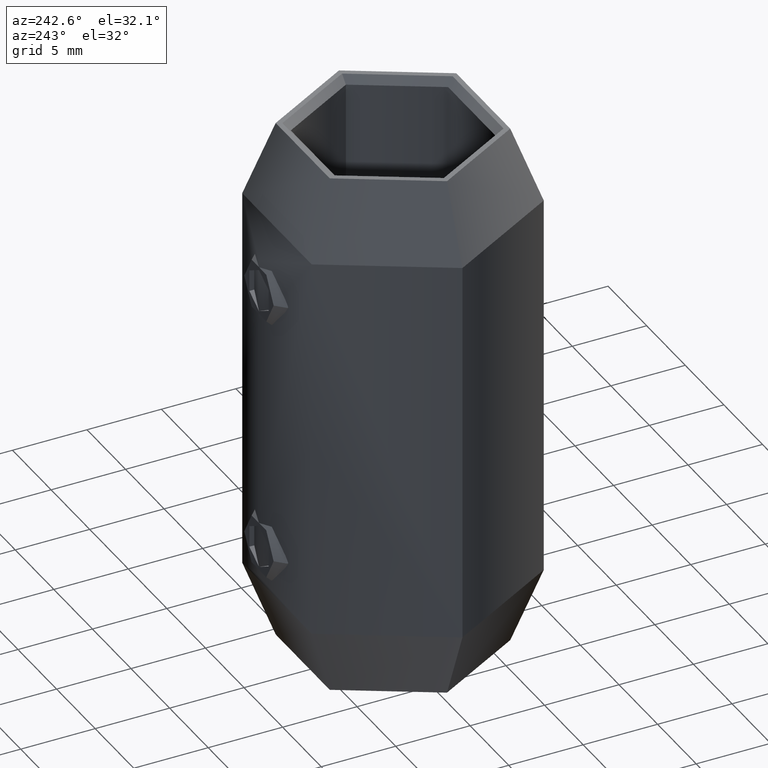
[diagram: clean part render]
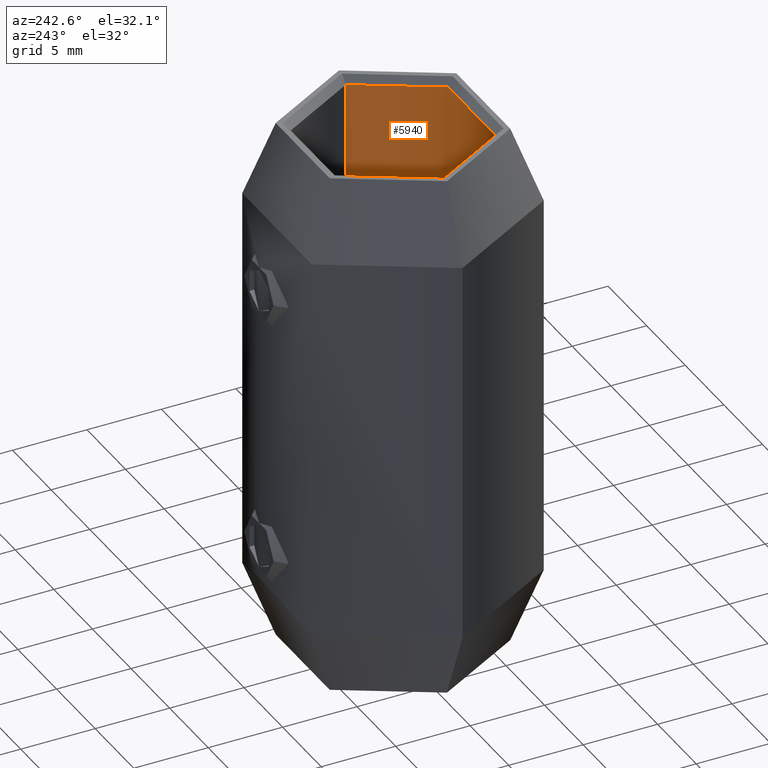
[diagram: same view with one face highlighted and labeled with its STEP entity id]
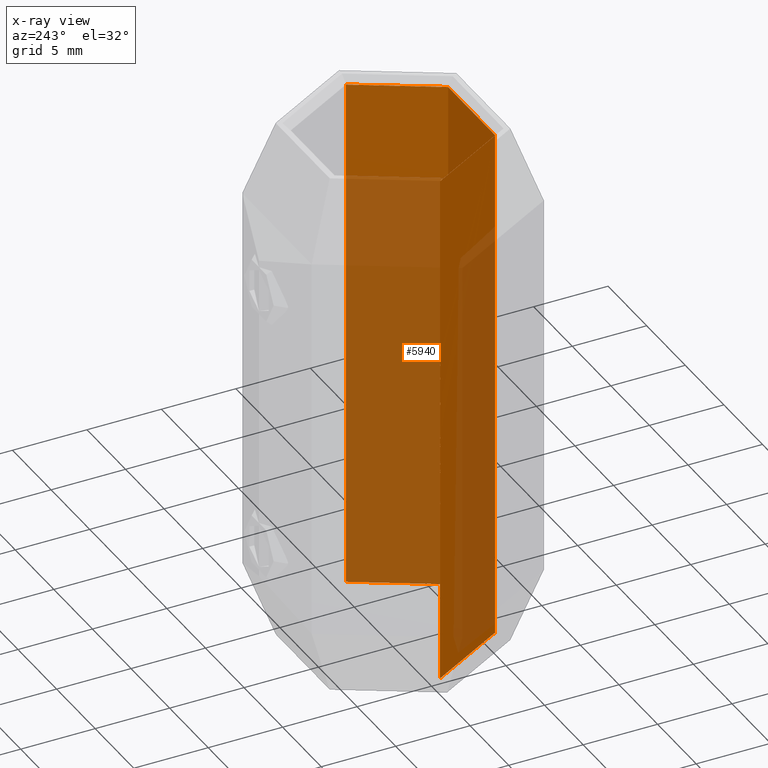
[diagram: x-ray of the same camera — body ghosted, the highlighted face saturated]
A machine part, auxiliary view. The second image highlights one B-rep face of the part: STEP entity #5940.
The next image is the same camera in x-ray: the body ghosted, the highlighted face saturated — about 70% of this face is hidden behind the body in this view.
In plain terms, the highlighted cylindrical surface (partial cylindrical patch) has radius 6.1 mm, axis along (0, 0, 1).
Its self-contained STEP definition (entity closure, byte-faithful):
#9 = CARTESIAN_POINT ( 'NONE',  ( -6.099999999999999645, -7.128602814312589957E-15, -3.035739101174560250 ) ) ;
#25 = ORIENTED_EDGE ( 'NONE', *, *, #14129, .F. ) ;
#60 = EDGE_CURVE ( 'NONE', #2687, #11102, #1113, .T. ) ;
#79 = EDGE_CURVE ( 'NONE', #8986, #861, #7922, .T. ) ;
#134 = VECTOR ( 'NONE', #4124, 1000.000000000000000 ) ;
#170 = LINE ( 'NONE', #12614, #13393 ) ;
#274 = CARTESIAN_POINT ( 'NONE',  ( -6.099999999999999645, 0.000000000000000000, 5.276402243589747521 ) ) ;
#322 = CARTESIAN_POINT ( 'NONE',  ( -6.099999999999994316, -0.01487762929069010552, -2.247464239202386693 ) ) ;
#338 = DIRECTION ( 'NONE',  ( -0.000000000000000000, -0.000000000000000000, 1.000000000000000000 ) ) ;
#347 = LINE ( 'NONE', #7769, #3084 ) ;
#460 = EDGE_CURVE ( 'NONE', #14965, #1084, #15880, .T. ) ;
#488 = DIRECTION ( 'NONE',  ( -0.000000000000000000, -0.000000000000000000, 1.000000000000000000 ) ) ;
#511 = EDGE_CURVE ( 'NONE', #7073, #12593, #9694, .T. ) ;
#539 = CARTESIAN_POINT ( 'NONE',  ( -6.099999999999999645, -1.761453718209784677E-13, 1.756918154046631875 ) ) ;
#588 = CARTESIAN_POINT ( 'NONE',  ( -6.099991511738652505, -0.01017628205128205156, 4.567401592548075762 ) ) ;
#630 = CARTESIAN_POINT ( 'NONE',  ( -6.099999999999999645, 0.000000000000000000, 3.312379807692309441 ) ) ;
#745 = ORIENTED_EDGE ( 'NONE', *, *, #3010, .F. ) ;
#781 = CARTESIAN_POINT ( 'NONE',  ( -6.099999999999999645, 7.470345474798854293E-16, 18.00000000000000000 ) ) ;
#808 = VERTEX_POINT ( 'NONE', #4639 ) ;
#826 = AXIS2_PLACEMENT_3D ( 'NONE', #7786, #15023, #5125 ) ;
#839 = CARTESIAN_POINT ( 'NONE',  ( -6.099999999999999645, 7.470345474798854293E-16, 18.00000000000000000 ) ) ;
#861 = VERTEX_POINT ( 'NONE', #5879 ) ;
#862 = DIRECTION ( 'NONE',  ( -0.000000000000000000, -0.000000000000000000, 1.000000000000000000 ) ) ;
#900 = LINE ( 'NONE', #10864, #11029 ) ;
#929 = DIRECTION ( 'NONE',  ( -0.000000000000000000, -0.000000000000000000, 1.000000000000000000 ) ) ;
#947 = DIRECTION ( 'NONE',  ( -0.000000000000000000, -0.000000000000000000, 1.000000000000000000 ) ) ;
#1040 = ORIENTED_EDGE ( 'NONE', *, *, #511, .F. ) ;
#1076 = VERTEX_POINT ( 'NONE', #11464 ) ;
#1084 = VERTEX_POINT ( 'NONE', #9091 ) ;
#1113 = CIRCLE ( 'NONE', #2600, 6.099999999999999645 ) ;
#1123 = ORIENTED_EDGE ( 'NONE', *, *, #5892, .T. ) ;
#1125 = EDGE_CURVE ( 'NONE', #4654, #10442, #6743, .T. ) ;
#1189 = DIRECTION ( 'NONE',  ( -0.000000000000000000, -0.000000000000000000, 1.000000000000000000 ) ) ;
#1203 = CARTESIAN_POINT ( 'NONE',  ( -6.099999999999996980, -0.006827771879876605443, 1.894279216789888309 ) ) ;
#1232 = ORIENTED_EDGE ( 'NONE', *, *, #14001, .F. ) ;
#1245 = CARTESIAN_POINT ( 'NONE',  ( -6.099999999999999645, 0.000000000000000000, 3.383613782051283714 ) ) ;
#1288 = CARTESIAN_POINT ( 'NONE',  ( -6.099999999999994316, 7.216720710606636917E-16, -0.3807421835509421926 ) ) ;
#1335 = CARTESIAN_POINT ( 'NONE',  ( -6.099968332915547187, -0.01966740638621949228, -2.889026597254146456 ) ) ;
#1397 = CARTESIAN_POINT ( 'NONE',  ( -6.099967924615060433, -0.01978978010940245572, -1.071609795172099755 ) ) ;
#1420 = VERTEX_POINT ( 'NONE', #8383 ) ;
#1440 = CARTESIAN_POINT ( 'NONE',  ( -6.100000000000002309, -0.006930887742653853503, 3.564685716166610341 ) ) ;
#1455 = VERTEX_POINT ( 'NONE', #3369 ) ;
#1463 = CARTESIAN_POINT ( 'NONE',  ( -6.099999999999999645, 0.000000000000000000, 18.00000000000000000 ) ) ;
#1493 = LINE ( 'NONE', #10277, #13558 ) ;
#1521 = EDGE_CURVE ( 'NONE', #8479, #1084, #8075, .T. ) ;
#1534 = ORIENTED_EDGE ( 'NONE', *, *, #11374, .F. ) ;
#1538 = CARTESIAN_POINT ( 'NONE',  ( 6.099999999999999645, 0.000000000000000000, 18.00000000000000000 ) ) ;
#1549 = DIRECTION ( 'NONE',  ( -0.000000000000000000, -0.000000000000000000, 1.000000000000000000 ) ) ;
#1609 = EDGE_CURVE ( 'NONE', #808, #6469, #900, .T. ) ;
#1651 = CARTESIAN_POINT ( 'NONE',  ( -6.099991511738652505, -0.01017628205128205156, 3.620530348557694289 ) ) ;
#1750 = VECTOR ( 'NONE', #11284, 1000.000000000000000 ) ;
#1783 = VERTEX_POINT ( 'NONE', #11226 ) ;
#1923 = LINE ( 'NONE', #1538, #2508 ) ;
#1958 = VERTEX_POINT ( 'NONE', #9172 ) ;
#1981 = VERTEX_POINT ( 'NONE', #7839 ) ;
#1986 = VERTEX_POINT ( 'NONE', #8018 ) ;
#1987 = ORIENTED_EDGE ( 'NONE', *, *, #10204, .T. ) ;
#2042 = DIRECTION ( 'NONE',  ( 1.000000000000000000, 0.000000000000000000, 0.000000000000000000 ) ) ;
#2095 = EDGE_CURVE ( 'NONE', #15387, #10442, #7956, .T. ) ;
#2123 = LINE ( 'NONE', #13334, #5649 ) ;
#2226 = LINE ( 'NONE', #3975, #7691 ) ;
#2252 = CARTESIAN_POINT ( 'NONE',  ( -6.099966046883739779, -0.02035256410256410312, -5.134729316907040264 ) ) ;
#2259 = EDGE_CURVE ( 'NONE', #2440, #4425, #5563, .T. ) ;
#2271 = VECTOR ( 'NONE', #4439, 1000.000000000000000 ) ;
#2331 = DIRECTION ( 'NONE',  ( -0.000000000000000000, -0.000000000000000000, 1.000000000000000000 ) ) ;
#2357 = CARTESIAN_POINT ( 'NONE',  ( -6.099991511738652505, -0.01017628205128205156, 1.839680989583336368 ) ) ;
#2369 = VERTEX_POINT ( 'NONE', #15508 ) ;
#2440 = VERTEX_POINT ( 'NONE', #1651 ) ;
#2481 = CARTESIAN_POINT ( 'NONE',  ( -6.099999999999999645, -0.01393049002650652464, -1.038606798505022466 ) ) ;
#2504 = CARTESIAN_POINT ( 'NONE',  ( -6.099991511738652505, -0.01017628205128205156, 1.839680989583336368 ) ) ;
#2508 = VECTOR ( 'NONE', #2740, 1000.000000000000000 ) ;
#2516 = AXIS2_PLACEMENT_3D ( 'NONE', #10886, #8550, #2042 ) ;
#2538 = CARTESIAN_POINT ( 'NONE',  ( -6.099999999999999645, 0.000000000000000000, -1.826642628205119800 ) ) ;
#2543 = ORIENTED_EDGE ( 'NONE', *, *, #2259, .F. ) ;
#2600 = AXIS2_PLACEMENT_3D ( 'NONE', #10874, #8434, #8323 ) ;
#2623 = CARTESIAN_POINT ( 'NONE',  ( -6.099999999999999645, 0.000000000000000000, 0.6258413461538516742 ) ) ;
#2687 = VERTEX_POINT ( 'NONE', #15841 ) ;
#2713 = LINE ( 'NONE', #3508, #15134 ) ;
#2721 = DIRECTION ( 'NONE',  ( 0.000000000000000000, 0.000000000000000000, -1.000000000000000000 ) ) ;
#2722 = ORIENTED_EDGE ( 'NONE', *, *, #4158, .T. ) ;
#2740 = DIRECTION ( 'NONE',  ( -0.000000000000000000, -0.000000000000000000, 1.000000000000000000 ) ) ;
#2750 = B_SPLINE_CURVE_WITH_KNOTS ( 'NONE', 3,
 ( #7857, #14254, #4214, #13008 ),
 .UNSPECIFIED., .F., .F.,
 ( 4, 4 ),
 ( 0.0003919476366704351426, 0.0004724429858818090795 ),
 .UNSPECIFIED. ) ;
#2797 = EDGE_CURVE ( 'NONE', #14965, #1783, #12708, .T. ) ;
#2844 = EDGE_CURVE ( 'NONE', #7073, #8640, #6922, .T. ) ;
#2847 = VERTEX_POINT ( 'NONE', #9 ) ;
#2868 = DIRECTION ( 'NONE',  ( -0.000000000000000000, -0.000000000000000000, 1.000000000000000000 ) ) ;
#2895 = LINE ( 'NONE', #15574, #11468 ) ;
#2902 = VERTEX_POINT ( 'NONE', #15006 ) ;
#2978 = CARTESIAN_POINT ( 'NONE',  ( -6.099999999999999645, 7.470345474798854293E-16, 18.00000000000000000 ) ) ;
#3010 = EDGE_CURVE ( 'NONE', #9146, #6469, #3180, .T. ) ;
#3084 = VECTOR ( 'NONE', #1549, 1000.000000000000000 ) ;
#3148 = EDGE_CURVE ( 'NONE', #4904, #15879, #4176, .T. ) ;
#3160 = CARTESIAN_POINT ( 'NONE',  ( -6.099991511738652505, -0.01017628205128205156, 1.839680989583336368 ) ) ;
#3180 = B_SPLINE_CURVE_WITH_KNOTS ( 'NONE', 3,
 ( #588, #9312, #11614, #12848 ),
 .UNSPECIFIED., .F., .F.,
 ( 4, 4 ),
 ( 0.000000000000000000, 8.654155194091915409E-05 ),
 .UNSPECIFIED. ) ;
#3228 = LINE ( 'NONE', #12699, #6127 ) ;
#3230 = VECTOR ( 'NONE', #15576, 1000.000000000000000 ) ;
#3274 = DIRECTION ( 'NONE',  ( 0.000000000000000000, 0.000000000000000000, -1.000000000000000000 ) ) ;
#3296 = VERTEX_POINT ( 'NONE', #1245 ) ;
#3312 = VERTEX_POINT ( 'NONE', #7299 ) ;
#3323 = CARTESIAN_POINT ( 'NONE',  ( -6.099966046883739779, -0.02035256410256410312, -2.329255558894223643 ) ) ;
#3329 = LINE ( 'NONE', #781, #7982 ) ;
#3369 = CARTESIAN_POINT ( 'NONE',  ( -6.099999999999999645, 0.000000000000000000, 3.078325320512821595 ) ) ;
#3414 = VERTEX_POINT ( 'NONE', #8836 ) ;
#3459 = DIRECTION ( 'NONE',  ( -0.000000000000000000, -0.000000000000000000, 1.000000000000000000 ) ) ;
#3478 = CARTESIAN_POINT ( 'NONE',  ( -6.099999999999999645, 7.470345474798854293E-16, 18.00000000000000000 ) ) ;
#3508 = CARTESIAN_POINT ( 'NONE',  ( -6.099999999999999645, 0.000000000000000000, 18.00000000000000000 ) ) ;
#3520 = CARTESIAN_POINT ( 'NONE',  ( -6.099999999999999645, 7.470345474798854293E-16, 18.00000000000000000 ) ) ;
#3540 = LINE ( 'NONE', #3520, #8225 ) ;
#3604 = EDGE_CURVE ( 'NONE', #3296, #4425, #3228, .T. ) ;
#3689 = ORIENTED_EDGE ( 'NONE', *, *, #13789, .T. ) ;
#3696 = VERTEX_POINT ( 'NONE', #274 ) ;
#3714 = ORIENTED_EDGE ( 'NONE', *, *, #4723, .T. ) ;
#3762 = CARTESIAN_POINT ( 'NONE',  ( -6.099999999999999645, 3.208137287725662534E-17, 4.652155334602600334 ) ) ;
#3791 = CARTESIAN_POINT ( 'NONE',  ( -6.099966046883739779, -0.02035256410256410312, -0.4813063401442249645 ) ) ;
#3805 = VECTOR ( 'NONE', #9394, 1000.000000000000000 ) ;
#3832 = ORIENTED_EDGE ( 'NONE', *, *, #6950, .T. ) ;
#3837 = ORIENTED_EDGE ( 'NONE', *, *, #3604, .T. ) ;
#3887 = LINE ( 'NONE', #14268, #13013 ) ;
#3964 = EDGE_CURVE ( 'NONE', #4904, #861, #14489, .T. ) ;
#3975 = CARTESIAN_POINT ( 'NONE',  ( -6.099999999999999645, 7.470345474798854293E-16, 18.00000000000000000 ) ) ;
#4045 = EDGE_LOOP ( 'NONE', ( #12064, #2722, #7642, #11728, #3832, #7162, #5515, #10532, #4480, #1534, #6720, #13050, #12078, #5167, #14786, #7605, #5113, #4951, #13963, #6059, #1232, #8354, #8954, #9715, #3714, #8008, #6354, #13442, #13165, #8038, #1987, #1040, #6240, #15001, #12792, #9372, #9948, #16026, #14838, #6247, #10304, #14922, #9974, #3837, #2543, #11030, #1123, #5208, #11447, #745, #4279, #3689, #6156, #4718, #15027, #25 ) ) ;
#4124 = DIRECTION ( 'NONE',  ( -0.000000000000000000, -0.000000000000000000, 1.000000000000000000 ) ) ;
#4141 = CARTESIAN_POINT ( 'NONE',  ( -6.099999999999999645, 7.470345474798854293E-16, 18.00000000000000000 ) ) ;
#4158 = EDGE_CURVE ( 'NONE', #1986, #12969, #12901, .T. ) ;
#4176 = LINE ( 'NONE', #8103, #8488 ) ;
#4192 = VECTOR ( 'NONE', #2331, 1000.000000000000000 ) ;
#4214 = CARTESIAN_POINT ( 'NONE',  ( -6.099992744494645791, -0.009437328368480721666, 3.647746412283787265 ) ) ;
#4225 = VECTOR ( 'NONE', #5692, 1000.000000000000000 ) ;
#4279 = ORIENTED_EDGE ( 'NONE', *, *, #10401, .F. ) ;
#4414 = CARTESIAN_POINT ( 'NONE',  ( -6.099999999999999645, 0.000000000000000000, 18.00000000000000000 ) ) ;
#4425 = VERTEX_POINT ( 'NONE', #5246 ) ;
#4439 = DIRECTION ( 'NONE',  ( -0.000000000000000000, -0.000000000000000000, 1.000000000000000000 ) ) ;
#4480 = ORIENTED_EDGE ( 'NONE', *, *, #11540, .T. ) ;
#4519 = LINE ( 'NONE', #7580, #5860 ) ;
#4600 = VECTOR ( 'NONE', #4903, 1000.000000000000000 ) ;
#4639 = CARTESIAN_POINT ( 'NONE',  ( -6.099999999999999645, 0.000000000000000000, 4.136658653846157385 ) ) ;
#4654 = VERTEX_POINT ( 'NONE', #2538 ) ;
#4718 = ORIENTED_EDGE ( 'NONE', *, *, #6136, .T. ) ;
#4723 = EDGE_CURVE ( 'NONE', #8006, #15785, #2226, .T. ) ;
#4739 = DIRECTION ( 'NONE',  ( 0.000000000000000000, 0.000000000000000000, -1.000000000000000000 ) ) ;
#4888 = B_SPLINE_CURVE_WITH_KNOTS ( 'NONE', 3,
 ( #11364, #2481, #1397, #11207 ),
 .UNSPECIFIED., .F., .F.,
 ( 4, 4 ),
 ( 0.0004565077820342771102, 0.0005551697821217590643 ),
 .UNSPECIFIED. ) ;
#4903 = DIRECTION ( 'NONE',  ( -0.000000000000000000, -0.000000000000000000, 1.000000000000000000 ) ) ;
#4904 = VERTEX_POINT ( 'NONE', #10618 ) ;
#4912 = VECTOR ( 'NONE', #5502, 1000.000000000000000 ) ;
#4951 = ORIENTED_EDGE ( 'NONE', *, *, #2095, .F. ) ;
#4995 = EDGE_CURVE ( 'NONE', #9905, #15785, #12716, .T. ) ;
#5000 = CARTESIAN_POINT ( 'NONE',  ( -6.099966046883739779, -0.02035256410256410312, -2.923614032451915978 ) ) ;
#5066 = CARTESIAN_POINT ( 'NONE',  ( -6.099968332915539193, -0.01966740638621956166, -0.4467189049464558859 ) ) ;
#5073 = CARTESIAN_POINT ( 'NONE',  ( -6.099999999999999645, 7.470345474798854293E-16, 18.00000000000000000 ) ) ;
#5082 = EDGE_CURVE ( 'NONE', #1076, #6824, #8678, .T. ) ;
#5113 = ORIENTED_EDGE ( 'NONE', *, *, #1125, .T. ) ;
#5125 = DIRECTION ( 'NONE',  ( 1.000000000000000000, 0.000000000000000000, 0.000000000000000000 ) ) ;
#5166 = CARTESIAN_POINT ( 'NONE',  ( -6.099966046883739779, -0.02035256410256410312, -2.923614032451915978 ) ) ;
#5167 = ORIENTED_EDGE ( 'NONE', *, *, #8755, .F. ) ;
#5174 = EDGE_CURVE ( 'NONE', #1420, #5529, #9553, .T. ) ;
#5189 = CARTESIAN_POINT ( 'NONE',  ( -6.099999999999999645, 0.000000000000000000, 1.602764423076927347 ) ) ;
#5208 = ORIENTED_EDGE ( 'NONE', *, *, #8317, .F. ) ;
#5246 = CARTESIAN_POINT ( 'NONE',  ( -6.099999999999996980, -1.761176314919558642E-13, 3.537767513020990240 ) ) ;
#5248 = CARTESIAN_POINT ( 'NONE',  ( -6.099999999999999645, 7.470345474798854293E-16, 18.00000000000000000 ) ) ;
#5283 = CARTESIAN_POINT ( 'NONE',  ( -6.099999999999999645, 0.000000000000000000, 0.9311298076923115730 ) ) ;
#5331 = CARTESIAN_POINT ( 'NONE',  ( -6.099999999999999645, 0.000000000000000000, -4.706530448717937354 ) ) ;
#5407 = CARTESIAN_POINT ( 'NONE',  ( -6.099999999999999645, 0.000000000000000000, 0.6970753205128230601 ) ) ;
#5455 = VERTEX_POINT ( 'NONE', #8859 ) ;
#5480 = CARTESIAN_POINT ( 'NONE',  ( -6.099999999999999645, 0.000000000000000000, 1.297475961538466338 ) ) ;
#5494 = CARTESIAN_POINT ( 'NONE',  ( -6.099999999999999645, -4.680915824764077249E-16, -2.209898723622862438 ) ) ;
#5502 = DIRECTION ( 'NONE',  ( -0.000000000000000000, -0.000000000000000000, 1.000000000000000000 ) ) ;
#5515 = ORIENTED_EDGE ( 'NONE', *, *, #6987, .T. ) ;
#5529 = VERTEX_POINT ( 'NONE', #10542 ) ;
#5563 = B_SPLINE_CURVE_WITH_KNOTS ( 'NONE', 3,
 ( #15118, #13936, #1440, #15272 ),
 .UNSPECIFIED., .F., .F.,
 ( 4, 4 ),
 ( 0.000000000000000000, 8.345817654298412925E-05 ),
 .UNSPECIFIED. ) ;
#5649 = VECTOR ( 'NONE', #13495, 1000.000000000000000 ) ;
#5662 = VECTOR ( 'NONE', #3274, 1000.000000000000000 ) ;
#5692 = DIRECTION ( 'NONE',  ( 0.000000000000000000, 0.000000000000000000, -1.000000000000000000 ) ) ;
#5723 = DIRECTION ( 'NONE',  ( 0.000000000000000000, 0.000000000000000000, -1.000000000000000000 ) ) ;
#5738 = DIRECTION ( 'NONE',  ( -0.000000000000000000, -0.000000000000000000, 1.000000000000000000 ) ) ;
#5774 = VERTEX_POINT ( 'NONE', #8689 ) ;
#5821 = CARTESIAN_POINT ( 'NONE',  ( -6.099999999999999645, -4.680915824764077249E-16, -2.209898723622862438 ) ) ;
#5860 = VECTOR ( 'NONE', #11231, 1000.000000000000000 ) ;
#5879 = CARTESIAN_POINT ( 'NONE',  ( -6.099999999999999645, 0.000000000000000000, 2.681450320512821506 ) ) ;
#5880 = VERTEX_POINT ( 'NONE', #12286 ) ;
#5892 = EDGE_CURVE ( 'NONE', #13174, #10090, #8804, .T. ) ;
#5902 = CARTESIAN_POINT ( 'NONE',  ( -6.099999999999999645, 0.000000000000000000, 0.1882612179487234139 ) ) ;
#5940 = ADVANCED_FACE ( 'NONE', ( #8620 ), #11699, .F. ) ;
#5991 = VECTOR ( 'NONE', #11999, 1000.000000000000000 ) ;
#6042 = CIRCLE ( 'NONE', #2516, 6.099999999999999645 ) ;
#6059 = ORIENTED_EDGE ( 'NONE', *, *, #10464, .T. ) ;
#6082 = CARTESIAN_POINT ( 'NONE',  ( -6.099999999999994316, -0.01415666475628486048, -0.5576926582445450586 ) ) ;
#6089 = CARTESIAN_POINT ( 'NONE',  ( -6.100000000000002309, -0.01402082616364579322, -2.854363495023751973 ) ) ;
#6121 = CARTESIAN_POINT ( 'NONE',  ( -6.100000000000014744, -0.01459490169198332868, -2.409896994860161179 ) ) ;
#6127 = VECTOR ( 'NONE', #10339, 1000.000000000000000 ) ;
#6136 = EDGE_CURVE ( 'NONE', #2369, #2687, #8241, .T. ) ;
#6156 = ORIENTED_EDGE ( 'NONE', *, *, #9414, .F. ) ;
#6193 = LINE ( 'NONE', #2978, #8175 ) ;
#6240 = ORIENTED_EDGE ( 'NONE', *, *, #2844, .T. ) ;
#6247 = ORIENTED_EDGE ( 'NONE', *, *, #15232, .T. ) ;
#6297 = CARTESIAN_POINT ( 'NONE',  ( -6.099992623472611619, -0.009509872871123155325, 4.595948811195976091 ) ) ;
#6354 = ORIENTED_EDGE ( 'NONE', *, *, #12383, .T. ) ;
#6461 = CARTESIAN_POINT ( 'NONE',  ( -6.099999999999999645, -7.128602814312589957E-15, -3.035739101174560250 ) ) ;
#6469 = VERTEX_POINT ( 'NONE', #13771 ) ;
#6599 = LINE ( 'NONE', #15975, #8771 ) ;
#6720 = ORIENTED_EDGE ( 'NONE', *, *, #2797, .F. ) ;
#6743 = LINE ( 'NONE', #10161, #134 ) ;
#6824 = VERTEX_POINT ( 'NONE', #5480 ) ;
#6874 = DIRECTION ( 'NONE',  ( 0.000000000000000000, 0.000000000000000000, -1.000000000000000000 ) ) ;
#6879 = CARTESIAN_POINT ( 'NONE',  ( -6.099967670346793547, -0.01986598808914031775, -5.168154915610930544 ) ) ;
#6884 = CARTESIAN_POINT ( 'NONE',  ( -6.099999999999999645, -6.855011172349450947E-15, -0.5934314088668701803 ) ) ;
#6922 = LINE ( 'NONE', #14805, #4600 ) ;
#6932 = CARTESIAN_POINT ( 'NONE',  ( -6.099999999999999645, 0.000000000000000000, 18.00000000000000000 ) ) ;
#6950 = EDGE_CURVE ( 'NONE', #1420, #14917, #3540, .T. ) ;
#6987 = EDGE_CURVE ( 'NONE', #11375, #5455, #4519, .T. ) ;
#7027 = CARTESIAN_POINT ( 'NONE',  ( -6.099999999999999645, 0.000000000000000000, 0.2594951923076994627 ) ) ;
#7048 = CARTESIAN_POINT ( 'NONE',  ( -6.099999999999999645, 0.000000000000000000, 18.00000000000000000 ) ) ;
#7073 = VERTEX_POINT ( 'NONE', #5189 ) ;
#7162 = ORIENTED_EDGE ( 'NONE', *, *, #13600, .F. ) ;
#7299 = CARTESIAN_POINT ( 'NONE',  ( -6.099999999999999645, 0.000000000000000000, -1.897876602564096071 ) ) ;
#7403 = CARTESIAN_POINT ( 'NONE',  ( -6.099999999999999645, 7.470345474798854293E-16, 18.00000000000000000 ) ) ;
#7566 = LINE ( 'NONE', #6932, #11275 ) ;
#7576 = EDGE_CURVE ( 'NONE', #3296, #13142, #13795, .T. ) ;
#7580 = CARTESIAN_POINT ( 'NONE',  ( -6.099999999999999645, 7.470345474798854293E-16, 18.00000000000000000 ) ) ;
#7605 = ORIENTED_EDGE ( 'NONE', *, *, #13267, .F. ) ;
#7617 = CARTESIAN_POINT ( 'NONE',  ( -6.099991511738652505, -0.01017628205128205156, 4.567401592548075762 ) ) ;
#7642 = ORIENTED_EDGE ( 'NONE', *, *, #12062, .F. ) ;
#7691 = VECTOR ( 'NONE', #488, 1000.000000000000000 ) ;
#7769 = CARTESIAN_POINT ( 'NONE',  ( -6.099999999999999645, 7.470345474798854293E-16, 18.00000000000000000 ) ) ;
#7786 = CARTESIAN_POINT ( 'NONE',  ( 0.000000000000000000, 0.000000000000000000, 18.00000000000000000 ) ) ;
#7839 = CARTESIAN_POINT ( 'NONE',  ( -6.099999999999999645, 0.000000000000000000, 3.149559294871796755 ) ) ;
#7857 = CARTESIAN_POINT ( 'NONE',  ( -6.099999999999999645, 6.679913580284226049E-16, 3.701209021145588807 ) ) ;
#7922 = LINE ( 'NONE', #7048, #5991 ) ;
#7956 = B_SPLINE_CURVE_WITH_KNOTS ( 'NONE', 3,
 ( #15906, #8614, #8503, #12175 ),
 .UNSPECIFIED., .F., .F.,
 ( 4, 4 ),
 ( 0.000000000000000000, 9.910530985522256924E-05 ),
 .UNSPECIFIED. ) ;
#7982 = VECTOR ( 'NONE', #929, 1000.000000000000000 ) ;
#8006 = VERTEX_POINT ( 'NONE', #7027 ) ;
#8008 = ORIENTED_EDGE ( 'NONE', *, *, #4995, .F. ) ;
#8010 = EDGE_CURVE ( 'NONE', #14852, #6824, #3329, .T. ) ;
#8012 = CARTESIAN_POINT ( 'NONE',  ( -6.099999999999999645, 7.470345474798854293E-16, 18.00000000000000000 ) ) ;
#8018 = CARTESIAN_POINT ( 'NONE',  ( -6.099999999999999645, 7.470345474798854293E-16, -17.49999999999999289 ) ) ;
#8038 = ORIENTED_EDGE ( 'NONE', *, *, #5082, .F. ) ;
#8075 = B_SPLINE_CURVE_WITH_KNOTS ( 'NONE', 3,
 ( #10666, #11139, #6121, #12308 ),
 .UNSPECIFIED., .F., .F.,
 ( 4, 4 ),
 ( 0.000000000000000000, 0.0001204480009606235039 ),
 .UNSPECIFIED. ) ;
#8103 = CARTESIAN_POINT ( 'NONE',  ( -6.099999999999999645, 0.000000000000000000, 18.00000000000000000 ) ) ;
#8154 = LINE ( 'NONE', #15760, #10684 ) ;
#8174 = DIRECTION ( 'NONE',  ( -0.000000000000000000, -0.000000000000000000, 1.000000000000000000 ) ) ;
#8175 = VECTOR ( 'NONE', #8174, 1000.000000000000000 ) ;
#8176 = DIRECTION ( 'NONE',  ( 0.000000000000000000, 0.000000000000000000, -1.000000000000000000 ) ) ;
#8188 = CARTESIAN_POINT ( 'NONE',  ( 6.099999999999999645, 0.000000000000000000, 17.49999999999999645 ) ) ;
#8203 = VECTOR ( 'NONE', #11329, 1000.000000000000000 ) ;
#8225 = VECTOR ( 'NONE', #11026, 1000.000000000000000 ) ;
#8241 = LINE ( 'NONE', #4141, #4912 ) ;
#8279 = CARTESIAN_POINT ( 'NONE',  ( -6.099999999999999645, 0.000000000000000000, 18.00000000000000000 ) ) ;
#8314 = DIRECTION ( 'NONE',  ( 0.000000000000000000, 0.000000000000000000, -1.000000000000000000 ) ) ;
#8317 = EDGE_CURVE ( 'NONE', #808, #10090, #3887, .T. ) ;
#8323 = DIRECTION ( 'NONE',  ( -1.000000000000000000, 0.000000000000000000, 0.000000000000000000 ) ) ;
#8338 = CARTESIAN_POINT ( 'NONE',  ( -6.100000000000002309, -0.01393049002650381674, -5.068414490812708451 ) ) ;
#8354 = ORIENTED_EDGE ( 'NONE', *, *, #10419, .F. ) ;
#8377 = EDGE_CURVE ( 'NONE', #1981, #1455, #10510, .T. ) ;
#8383 = CARTESIAN_POINT ( 'NONE',  ( -6.100000000000002309, 9.555590436212575700E-16, -5.038377844055012211 ) ) ;
#8434 = DIRECTION ( 'NONE',  ( 0.000000000000000000, 0.000000000000000000, 1.000000000000000000 ) ) ;
#8466 = EDGE_CURVE ( 'NONE', #12866, #8640, #11411, .T. ) ;
#8479 = VERTEX_POINT ( 'NONE', #3323 ) ;
#8488 = VECTOR ( 'NONE', #6874, 1000.000000000000000 ) ;
#8491 = CARTESIAN_POINT ( 'NONE',  ( -6.099967924615071091, -0.01978978010940240020, -5.101417487479785962 ) ) ;
#8503 = CARTESIAN_POINT ( 'NONE',  ( -6.099999999999999645, -0.01337717144219271494, -1.171308384150336002 ) ) ;
#8550 = DIRECTION ( 'NONE',  ( -0.000000000000000000, -0.000000000000000000, -1.000000000000000000 ) ) ;
#8577 = LINE ( 'NONE', #8898, #13405 ) ;
#8592 = LINE ( 'NONE', #5073, #8203 ) ;
#8614 = CARTESIAN_POINT ( 'NONE',  ( -6.099967670346793547, -0.01986598808914019632, -1.138347223303243005 ) ) ;
#8620 = FACE_OUTER_BOUND ( 'NONE', #4045, .T. ) ;
#8640 = VERTEX_POINT ( 'NONE', #539 ) ;
#8678 = LINE ( 'NONE', #9690, #10810 ) ;
#8689 = CARTESIAN_POINT ( 'NONE',  ( -6.099999999999999645, 0.000000000000000000, 0.8598958333333381887 ) ) ;
#8755 = EDGE_CURVE ( 'NONE', #8921, #8479, #14913, .T. ) ;
#8757 = LINE ( 'NONE', #5248, #14151 ) ;
#8771 = VECTOR ( 'NONE', #3459, 1000.000000000000000 ) ;
#8804 = LINE ( 'NONE', #13481, #11922 ) ;
#8836 = CARTESIAN_POINT ( 'NONE',  ( -6.099999999999998757, 0.000000000000000000, -3.648197115384605560 ) ) ;
#8859 = CARTESIAN_POINT ( 'NONE',  ( -6.099999999999999645, 0.000000000000000000, -4.187540064102553750 ) ) ;
#8878 = CARTESIAN_POINT ( 'NONE',  ( -6.099999999999999645, -0.01415666475628519702, -3.000000350552234796 ) ) ;
#8898 = CARTESIAN_POINT ( 'NONE',  ( -6.099999999999999645, 7.470345474798854293E-16, 18.00000000000000000 ) ) ;
#8921 = VERTEX_POINT ( 'NONE', #5821 ) ;
#8950 = EDGE_CURVE ( 'NONE', #3414, #5455, #2895, .T. ) ;
#8954 = ORIENTED_EDGE ( 'NONE', *, *, #14469, .T. ) ;
#8986 = VERTEX_POINT ( 'NONE', #9595 ) ;
#9047 = CARTESIAN_POINT ( 'NONE',  ( -6.099966046883739779, -0.02035256410256410312, -2.329255558894223643 ) ) ;
#9091 = CARTESIAN_POINT ( 'NONE',  ( -6.099999999999999645, 7.466469592714431022E-12, -2.446869796523688745 ) ) ;
#9146 = VERTEX_POINT ( 'NONE', #11145 ) ;
#9172 = CARTESIAN_POINT ( 'NONE',  ( -6.099999999999999645, 3.208137287725662534E-17, 4.652155334602600334 ) ) ;
#9312 = CARTESIAN_POINT ( 'NONE',  ( -6.099992493194266174, -0.009587965917546627595, 4.538292851654255777 ) ) ;
#9349 = EDGE_CURVE ( 'NONE', #13174, #2440, #2750, .T. ) ;
#9372 = ORIENTED_EDGE ( 'NONE', *, *, #13496, .T. ) ;
#9394 = DIRECTION ( 'NONE',  ( -0.000000000000000000, -0.000000000000000000, 1.000000000000000000 ) ) ;
#9414 = EDGE_CURVE ( 'NONE', #2369, #3696, #7566, .T. ) ;
#9553 = B_SPLINE_CURVE_WITH_KNOTS ( 'NONE', 3,
 ( #14649, #8338, #8491, #2252 ),
 .UNSPECIFIED., .F., .F.,
 ( 4, 4 ),
 ( 0.0004565077820342753213, 0.0005551697821217584138 ),
 .UNSPECIFIED. ) ;
#9565 = DIRECTION ( 'NONE',  ( 0.000000000000000000, 0.000000000000000000, -1.000000000000000000 ) ) ;
#9595 = CARTESIAN_POINT ( 'NONE',  ( -6.099999999999999645, 0.000000000000000000, 2.752684294871795334 ) ) ;
#9627 = CARTESIAN_POINT ( 'NONE',  ( -6.099999999999999645, 0.000000000000000000, 2.284575320512821861 ) ) ;
#9647 = CARTESIAN_POINT ( 'NONE',  ( -6.099999999999996980, 7.490947627280217638E-16, -2.823049875858632429 ) ) ;
#9690 = CARTESIAN_POINT ( 'NONE',  ( -6.099999999999999645, 0.000000000000000000, 18.00000000000000000 ) ) ;
#9694 = LINE ( 'NONE', #11884, #4225 ) ;
#9715 = ORIENTED_EDGE ( 'NONE', *, *, #15144, .F. ) ;
#9719 = VERTEX_POINT ( 'NONE', #10014 ) ;
#9830 = CARTESIAN_POINT ( 'NONE',  ( -6.099967208621287718, -0.02000437408782705997, -0.5197372247903339071 ) ) ;
#9905 = VERTEX_POINT ( 'NONE', #5407 ) ;
#9919 = CARTESIAN_POINT ( 'NONE',  ( -6.099992744494645791, -0.009437328368480674828, 1.866897053309429788 ) ) ;
#9948 = ORIENTED_EDGE ( 'NONE', *, *, #3148, .F. ) ;
#9974 = ORIENTED_EDGE ( 'NONE', *, *, #7576, .F. ) ;
#10014 = CARTESIAN_POINT ( 'NONE',  ( 6.099999999999999645, 0.000000000000000000, -17.49999999999999289 ) ) ;
#10090 = VERTEX_POINT ( 'NONE', #10848 ) ;
#10161 = CARTESIAN_POINT ( 'NONE',  ( -6.099999999999999645, 7.470345474798854293E-16, 18.00000000000000000 ) ) ;
#10185 = DIRECTION ( 'NONE',  ( -0.000000000000000000, -0.000000000000000000, 1.000000000000000000 ) ) ;
#10204 = EDGE_CURVE ( 'NONE', #1076, #12593, #8154, .T. ) ;
#10277 = CARTESIAN_POINT ( 'NONE',  ( -6.099999999999999645, 7.470345474798854293E-16, 18.00000000000000000 ) ) ;
#10304 = ORIENTED_EDGE ( 'NONE', *, *, #8377, .F. ) ;
#10339 = DIRECTION ( 'NONE',  ( -0.000000000000000000, -0.000000000000000000, 1.000000000000000000 ) ) ;
#10401 = EDGE_CURVE ( 'NONE', #1958, #9146, #13779, .T. ) ;
#10419 = EDGE_CURVE ( 'NONE', #2902, #13538, #15012, .T. ) ;
#10442 = VERTEX_POINT ( 'NONE', #12594 ) ;
#10464 = EDGE_CURVE ( 'NONE', #15328, #14352, #1493, .T. ) ;
#10510 = LINE ( 'NONE', #8279, #12618 ) ;
#10532 = ORIENTED_EDGE ( 'NONE', *, *, #8950, .F. ) ;
#10542 = CARTESIAN_POINT ( 'NONE',  ( -6.099966046883739779, -0.02035256410256410312, -5.134729316907040264 ) ) ;
#10618 = CARTESIAN_POINT ( 'NONE',  ( -6.099999999999999645, 0.000000000000000000, 2.355809294871797466 ) ) ;
#10666 = CARTESIAN_POINT ( 'NONE',  ( -6.099966046883739779, -0.02035256410256410312, -2.329255558894223643 ) ) ;
#10684 = VECTOR ( 'NONE', #5738, 1000.000000000000000 ) ;
#10810 = VECTOR ( 'NONE', #4739, 1000.000000000000000 ) ;
#10818 = CARTESIAN_POINT ( 'NONE',  ( -6.099999999999999645, -1.761453718209784677E-13, 1.756918154046631875 ) ) ;
#10848 = CARTESIAN_POINT ( 'NONE',  ( -6.099999999999999645, 0.000000000000000000, 4.065424679487181336 ) ) ;
#10864 = CARTESIAN_POINT ( 'NONE',  ( -6.099999999999999645, 7.470345474798854293E-16, 18.00000000000000000 ) ) ;
#10874 = CARTESIAN_POINT ( 'NONE',  ( 0.000000000000000000, 0.000000000000000000, 17.49999999999999645 ) ) ;
#10886 = CARTESIAN_POINT ( 'NONE',  ( 0.000000000000000000, 0.000000000000000000, -17.49999999999999289 ) ) ;
#10924 = LINE ( 'NONE', #11796, #5662 ) ;
#11026 = DIRECTION ( 'NONE',  ( -0.000000000000000000, -0.000000000000000000, 1.000000000000000000 ) ) ;
#11029 = VECTOR ( 'NONE', #947, 1000.000000000000000 ) ;
#11030 = ORIENTED_EDGE ( 'NONE', *, *, #9349, .F. ) ;
#11102 = VERTEX_POINT ( 'NONE', #8188 ) ;
#11139 = CARTESIAN_POINT ( 'NONE',  ( -6.099969569476209941, -0.01929679076816927935, -2.369439819655177359 ) ) ;
#11145 = CARTESIAN_POINT ( 'NONE',  ( -6.099991511738652505, -0.01017628205128205156, 4.567401592548075762 ) ) ;
#11207 = CARTESIAN_POINT ( 'NONE',  ( -6.099966046883739779, -0.02035256410256410312, -1.104921624599352947 ) ) ;
#11226 = CARTESIAN_POINT ( 'NONE',  ( -6.099966046883739779, -0.02035256410256410312, -2.923614032451915978 ) ) ;
#11231 = DIRECTION ( 'NONE',  ( -0.000000000000000000, -0.000000000000000000, 1.000000000000000000 ) ) ;
#11267 = CARTESIAN_POINT ( 'NONE',  ( -6.099999999999996980, -0.007163250218278647240, 4.624601915959996923 ) ) ;
#11275 = VECTOR ( 'NONE', #8314, 1000.000000000000000 ) ;
#11284 = DIRECTION ( 'NONE',  ( 0.000000000000000000, 0.000000000000000000, -1.000000000000000000 ) ) ;
#11329 = DIRECTION ( 'NONE',  ( -0.000000000000000000, -0.000000000000000000, 1.000000000000000000 ) ) ;
#11364 = CARTESIAN_POINT ( 'NONE',  ( -6.100000000000002309, 6.246867986000465987E-16, -1.008570151747325339 ) ) ;
#11374 = EDGE_CURVE ( 'NONE', #1783, #2847, #12728, .T. ) ;
#11375 = VERTEX_POINT ( 'NONE', #14607 ) ;
#11380 = DIRECTION ( 'NONE',  ( 0.000000000000000000, 0.000000000000000000, -1.000000000000000000 ) ) ;
#11411 = B_SPLINE_CURVE_WITH_KNOTS ( 'NONE', 3,
 ( #3160, #13079, #13253, #10818 ),
 .UNSPECIFIED., .F., .F.,
 ( 4, 4 ),
 ( 0.000000000000000000, 8.345817654298414280E-05 ),
 .UNSPECIFIED. ) ;
#11447 = ORIENTED_EDGE ( 'NONE', *, *, #1609, .T. ) ;
#11464 = CARTESIAN_POINT ( 'NONE',  ( -6.099999999999999645, 0.000000000000000000, 1.368709935897438612 ) ) ;
#11466 = LINE ( 'NONE', #1463, #11649 ) ;
#11468 = VECTOR ( 'NONE', #8176, 1000.000000000000000 ) ;
#11510 = B_SPLINE_CURVE_WITH_KNOTS ( 'NONE', 3,
 ( #13005, #6879, #14251, #15600 ),
 .UNSPECIFIED., .F., .F.,
 ( 4, 4 ),
 ( 0.000000000000000000, 9.910530985522305713E-05 ),
 .UNSPECIFIED. ) ;
#11540 = EDGE_CURVE ( 'NONE', #3414, #2847, #6193, .T. ) ;
#11595 = CARTESIAN_POINT ( 'NONE',  ( -6.099999999999996980, -1.910942327905959620E-13, -5.231583161531879966 ) ) ;
#11614 = CARTESIAN_POINT ( 'NONE',  ( -6.100000000000008527, -0.007241999680359111763, 4.509460315133404507 ) ) ;
#11649 = VECTOR ( 'NONE', #2721, 1000.000000000000000 ) ;
#11699 = CYLINDRICAL_SURFACE ( 'NONE', #826, 6.099999999999999645 ) ;
#11722 = B_SPLINE_CURVE_WITH_KNOTS ( 'NONE', 3,
 ( #3791, #9830, #6082, #12476 ),
 .UNSPECIFIED., .F., .F.,
 ( 4, 4 ),
 ( 0.000000000000000000, 0.0001140101085270558870 ),
 .UNSPECIFIED. ) ;
#11728 = ORIENTED_EDGE ( 'NONE', *, *, #5174, .F. ) ;
#11796 = CARTESIAN_POINT ( 'NONE',  ( -6.099999999999999645, 0.000000000000000000, 18.00000000000000000 ) ) ;
#11852 = CARTESIAN_POINT ( 'NONE',  ( -6.099999999999999645, 0.000000000000000000, 1.531530448717951520 ) ) ;
#11884 = CARTESIAN_POINT ( 'NONE',  ( -6.099999999999999645, 0.000000000000000000, 18.00000000000000000 ) ) ;
#11922 = VECTOR ( 'NONE', #1189, 1000.000000000000000 ) ;
#11999 = DIRECTION ( 'NONE',  ( 0.000000000000000000, 0.000000000000000000, -1.000000000000000000 ) ) ;
#12029 = CARTESIAN_POINT ( 'NONE',  ( -6.099966046883739779, -0.02035256410256410312, -1.104921624599352947 ) ) ;
#12062 = EDGE_CURVE ( 'NONE', #5529, #12969, #11510, .T. ) ;
#12064 = ORIENTED_EDGE ( 'NONE', *, *, #13872, .T. ) ;
#12078 = ORIENTED_EDGE ( 'NONE', *, *, #1521, .F. ) ;
#12175 = CARTESIAN_POINT ( 'NONE',  ( -6.099999999999996980, -1.914879972319508049E-13, -1.201775469224191983 ) ) ;
#12286 = CARTESIAN_POINT ( 'NONE',  ( -6.099999999999999645, 7.633884437129381806E-16, 1.920359662171231330 ) ) ;
#12308 = CARTESIAN_POINT ( 'NONE',  ( -6.099999999999999645, 7.466469592714431022E-12, -2.446869796523688745 ) ) ;
#12383 = EDGE_CURVE ( 'NONE', #9905, #5774, #347, .T. ) ;
#12476 = CARTESIAN_POINT ( 'NONE',  ( -6.099999999999999645, -6.855011172349450947E-15, -0.5934314088668701803 ) ) ;
#12553 = CARTESIAN_POINT ( 'NONE',  ( -6.099999999999999645, 0.000000000000000000, 18.00000000000000000 ) ) ;
#12593 = VERTEX_POINT ( 'NONE', #11852 ) ;
#12594 = CARTESIAN_POINT ( 'NONE',  ( -6.099999999999996980, -1.914879972319508049E-13, -1.201775469224191983 ) ) ;
#12614 = CARTESIAN_POINT ( 'NONE',  ( -6.099999999999999645, 0.000000000000000000, 18.00000000000000000 ) ) ;
#12618 = VECTOR ( 'NONE', #13027, 1000.000000000000000 ) ;
#12631 = LINE ( 'NONE', #3478, #14583 ) ;
#12699 = CARTESIAN_POINT ( 'NONE',  ( -6.099999999999999645, 7.470345474798854293E-16, 18.00000000000000000 ) ) ;
#12708 = B_SPLINE_CURVE_WITH_KNOTS ( 'NONE', 3,
 ( #9647, #6089, #1335, #5000 ),
 .UNSPECIFIED., .F., .F.,
 ( 4, 4 ),
 ( 0.0002582331990669419321, 0.0003609060028396904275 ),
 .UNSPECIFIED. ) ;
#12716 = LINE ( 'NONE', #4414, #3230 ) ;
#12728 = B_SPLINE_CURVE_WITH_KNOTS ( 'NONE', 3,
 ( #5166, #13832, #8878, #6461 ),
 .UNSPECIFIED., .F., .F.,
 ( 4, 4 ),
 ( 0.000000000000000000, 0.0001140101085270549790 ),
 .UNSPECIFIED. ) ;
#12792 = ORIENTED_EDGE ( 'NONE', *, *, #14572, .F. ) ;
#12804 = CARTESIAN_POINT ( 'NONE',  ( -6.099969371667853579, -0.01935607687303817978, -2.288605548033608272 ) ) ;
#12848 = CARTESIAN_POINT ( 'NONE',  ( -6.099999999999996980, 5.271580737709376116E-12, 4.481397160376812572 ) ) ;
#12866 = VERTEX_POINT ( 'NONE', #2357 ) ;
#12901 = LINE ( 'NONE', #8012, #3805 ) ;
#12949 = B_SPLINE_CURVE_WITH_KNOTS ( 'NONE', 3,
 ( #13597, #1203, #9919, #2504 ),
 .UNSPECIFIED., .F., .F.,
 ( 4, 4 ),
 ( 0.0003919476366704244090, 0.0004724429858817959064 ),
 .UNSPECIFIED. ) ;
#12969 = VERTEX_POINT ( 'NONE', #11595 ) ;
#13005 = CARTESIAN_POINT ( 'NONE',  ( -6.099966046883739779, -0.02035256410256410312, -5.134729316907040264 ) ) ;
#13008 = CARTESIAN_POINT ( 'NONE',  ( -6.099991511738652505, -0.01017628205128205156, 3.620530348557694289 ) ) ;
#13013 = VECTOR ( 'NONE', #5723, 1000.000000000000000 ) ;
#13027 = DIRECTION ( 'NONE',  ( 0.000000000000000000, 0.000000000000000000, -1.000000000000000000 ) ) ;
#13050 = ORIENTED_EDGE ( 'NONE', *, *, #460, .T. ) ;
#13079 = CARTESIAN_POINT ( 'NONE',  ( -6.099992595897682612, -0.009526402178633914739, 1.811790845048574461 ) ) ;
#13142 = VERTEX_POINT ( 'NONE', #630 ) ;
#13165 = ORIENTED_EDGE ( 'NONE', *, *, #8010, .T. ) ;
#13174 = VERTEX_POINT ( 'NONE', #14417 ) ;
#13253 = CARTESIAN_POINT ( 'NONE',  ( -6.099999999999999645, -0.006930887742654122385, 1.783836357192251754 ) ) ;
#13267 = EDGE_CURVE ( 'NONE', #4654, #3312, #2713, .T. ) ;
#13334 = CARTESIAN_POINT ( 'NONE',  ( -6.099999999999999645, 7.470345474798854293E-16, 18.00000000000000000 ) ) ;
#13393 = VECTOR ( 'NONE', #11380, 1000.000000000000000 ) ;
#13405 = VECTOR ( 'NONE', #338, 1000.000000000000000 ) ;
#13442 = ORIENTED_EDGE ( 'NONE', *, *, #14777, .F. ) ;
#13481 = CARTESIAN_POINT ( 'NONE',  ( -6.099999999999999645, 7.470345474798854293E-16, 18.00000000000000000 ) ) ;
#13495 = DIRECTION ( 'NONE',  ( -0.000000000000000000, -0.000000000000000000, 1.000000000000000000 ) ) ;
#13496 = EDGE_CURVE ( 'NONE', #5880, #15879, #8592, .T. ) ;
#13538 = VERTEX_POINT ( 'NONE', #14982 ) ;
#13558 = VECTOR ( 'NONE', #2868, 1000.000000000000000 ) ;
#13597 = CARTESIAN_POINT ( 'NONE',  ( -6.099999999999999645, 7.633884437129381806E-16, 1.920359662171231330 ) ) ;
#13600 = EDGE_CURVE ( 'NONE', #11375, #14917, #10924, .T. ) ;
#13771 = CARTESIAN_POINT ( 'NONE',  ( -6.099999999999996980, 5.271580737709376116E-12, 4.481397160376812572 ) ) ;
#13779 = B_SPLINE_CURVE_WITH_KNOTS ( 'NONE', 3,
 ( #3762, #11267, #6297, #7617 ),
 .UNSPECIFIED., .F., .F.,
 ( 4, 4 ),
 ( 0.0003791450319626402739, 0.0004638207655377274896 ),
 .UNSPECIFIED. ) ;
#13789 = EDGE_CURVE ( 'NONE', #1958, #3696, #12631, .T. ) ;
#13795 = LINE ( 'NONE', #12553, #1750 ) ;
#13832 = CARTESIAN_POINT ( 'NONE',  ( -6.099967208621287718, -0.02000437408782708426, -2.962044917098024754 ) ) ;
#13836 = CARTESIAN_POINT ( 'NONE',  ( -6.099999999999996980, -0.01402082616364531444, -0.4120558027160606818 ) ) ;
#13872 = EDGE_CURVE ( 'NONE', #9719, #1986, #6042, .T. ) ;
#13936 = CARTESIAN_POINT ( 'NONE',  ( -6.099992595897682612, -0.009526402178633911269, 3.592640204022932604 ) ) ;
#13963 = ORIENTED_EDGE ( 'NONE', *, *, #15483, .F. ) ;
#14001 = EDGE_CURVE ( 'NONE', #13538, #14352, #11722, .T. ) ;
#14129 = EDGE_CURVE ( 'NONE', #9719, #11102, #1923, .T. ) ;
#14151 = VECTOR ( 'NONE', #10185, 1000.000000000000000 ) ;
#14251 = CARTESIAN_POINT ( 'NONE',  ( -6.099999999999999645, -0.01337717144219471681, -5.201116076458025539 ) ) ;
#14254 = CARTESIAN_POINT ( 'NONE',  ( -6.099999999999999645, -0.006827771879876919428, 3.675128575764245564 ) ) ;
#14268 = CARTESIAN_POINT ( 'NONE',  ( -6.099999999999999645, 0.000000000000000000, 18.00000000000000000 ) ) ;
#14352 = VERTEX_POINT ( 'NONE', #6884 ) ;
#14417 = CARTESIAN_POINT ( 'NONE',  ( -6.099999999999999645, 6.679913580284226049E-16, 3.701209021145588807 ) ) ;
#14424 = EDGE_CURVE ( 'NONE', #8921, #3312, #2123, .T. ) ;
#14448 = VERTEX_POINT ( 'NONE', #5902 ) ;
#14455 = CARTESIAN_POINT ( 'NONE',  ( -6.100000000000002309, 6.246867986000465987E-16, -1.008570151747325339 ) ) ;
#14469 = EDGE_CURVE ( 'NONE', #2902, #14448, #6599, .T. ) ;
#14489 = LINE ( 'NONE', #7403, #4192 ) ;
#14572 = EDGE_CURVE ( 'NONE', #5880, #12866, #12949, .T. ) ;
#14583 = VECTOR ( 'NONE', #862, 1000.000000000000000 ) ;
#14607 = CARTESIAN_POINT ( 'NONE',  ( -6.099999999999999645, 0.000000000000000000, -4.635296474358962193 ) ) ;
#14649 = CARTESIAN_POINT ( 'NONE',  ( -6.100000000000002309, 9.555590436212575700E-16, -5.038377844055012211 ) ) ;
#14731 = EDGE_CURVE ( 'NONE', #1981, #13142, #8577, .T. ) ;
#14777 = EDGE_CURVE ( 'NONE', #14852, #5774, #11466, .T. ) ;
#14786 = ORIENTED_EDGE ( 'NONE', *, *, #14424, .T. ) ;
#14805 = CARTESIAN_POINT ( 'NONE',  ( -6.099999999999999645, 7.470345474798854293E-16, 18.00000000000000000 ) ) ;
#14838 = ORIENTED_EDGE ( 'NONE', *, *, #79, .F. ) ;
#14852 = VERTEX_POINT ( 'NONE', #5283 ) ;
#14913 = B_SPLINE_CURVE_WITH_KNOTS ( 'NONE', 3,
 ( #5494, #322, #12804, #9047 ),
 .UNSPECIFIED., .F., .F.,
 ( 4, 4 ),
 ( 0.0002834993273876660128, 0.0004042646864020077598 ),
 .UNSPECIFIED. ) ;
#14917 = VERTEX_POINT ( 'NONE', #5331 ) ;
#14922 = ORIENTED_EDGE ( 'NONE', *, *, #14731, .T. ) ;
#14965 = VERTEX_POINT ( 'NONE', #15178 ) ;
#14973 = CARTESIAN_POINT ( 'NONE',  ( -6.099966046883739779, -0.02035256410256410312, -0.4813063401442249645 ) ) ;
#14982 = CARTESIAN_POINT ( 'NONE',  ( -6.099966046883739779, -0.02035256410256410312, -0.4813063401442249645 ) ) ;
#15001 = ORIENTED_EDGE ( 'NONE', *, *, #8466, .F. ) ;
#15006 = CARTESIAN_POINT ( 'NONE',  ( -6.099999999999994316, 7.216720710606636917E-16, -0.3807421835509421926 ) ) ;
#15012 = B_SPLINE_CURVE_WITH_KNOTS ( 'NONE', 3,
 ( #1288, #13836, #5066, #14973 ),
 .UNSPECIFIED., .F., .F.,
 ( 4, 4 ),
 ( 0.0002582331990669417695, 0.0003609060028396880965 ),
 .UNSPECIFIED. ) ;
#15023 = DIRECTION ( 'NONE',  ( -0.000000000000000000, -0.000000000000000000, 1.000000000000000000 ) ) ;
#15027 = ORIENTED_EDGE ( 'NONE', *, *, #60, .T. ) ;
#15118 = CARTESIAN_POINT ( 'NONE',  ( -6.099991511738652505, -0.01017628205128205156, 3.620530348557694289 ) ) ;
#15134 = VECTOR ( 'NONE', #9565, 1000.000000000000000 ) ;
#15144 = EDGE_CURVE ( 'NONE', #8006, #14448, #170, .T. ) ;
#15178 = CARTESIAN_POINT ( 'NONE',  ( -6.099999999999996980, 7.490947627280217638E-16, -2.823049875858632429 ) ) ;
#15232 = EDGE_CURVE ( 'NONE', #8986, #1455, #8757, .T. ) ;
#15272 = CARTESIAN_POINT ( 'NONE',  ( -6.099999999999996980, -1.761176314919558642E-13, 3.537767513020990240 ) ) ;
#15328 = VERTEX_POINT ( 'NONE', #14455 ) ;
#15387 = VERTEX_POINT ( 'NONE', #12029 ) ;
#15483 = EDGE_CURVE ( 'NONE', #15328, #15387, #4888, .T. ) ;
#15508 = CARTESIAN_POINT ( 'NONE',  ( -6.099999999999999645, 0.000000000000000000, 5.347636217948722681 ) ) ;
#15574 = CARTESIAN_POINT ( 'NONE',  ( -6.099999999999999645, 0.000000000000000000, 18.00000000000000000 ) ) ;
#15576 = DIRECTION ( 'NONE',  ( 0.000000000000000000, 0.000000000000000000, -1.000000000000000000 ) ) ;
#15600 = CARTESIAN_POINT ( 'NONE',  ( -6.099999999999996980, -1.910942327905959620E-13, -5.231583161531879966 ) ) ;
#15760 = CARTESIAN_POINT ( 'NONE',  ( -6.099999999999999645, 7.470345474798854293E-16, 18.00000000000000000 ) ) ;
#15785 = VERTEX_POINT ( 'NONE', #2623 ) ;
#15841 = CARTESIAN_POINT ( 'NONE',  ( -6.099999999999999645, 7.470345474798854293E-16, 17.49999999999999645 ) ) ;
#15879 = VERTEX_POINT ( 'NONE', #9627 ) ;
#15880 = LINE ( 'NONE', #839, #2271 ) ;
#15906 = CARTESIAN_POINT ( 'NONE',  ( -6.099966046883739779, -0.02035256410256410312, -1.104921624599352947 ) ) ;
#15975 = CARTESIAN_POINT ( 'NONE',  ( -6.099999999999999645, 7.470345474798854293E-16, 18.00000000000000000 ) ) ;
#16026 = ORIENTED_EDGE ( 'NONE', *, *, #3964, .T. ) ;